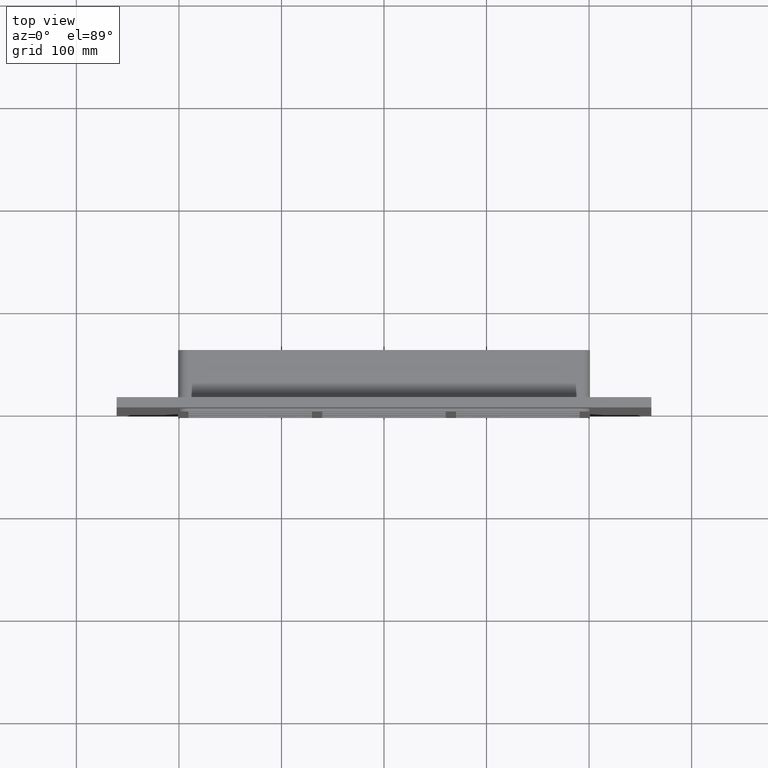
[diagram: clean part render]
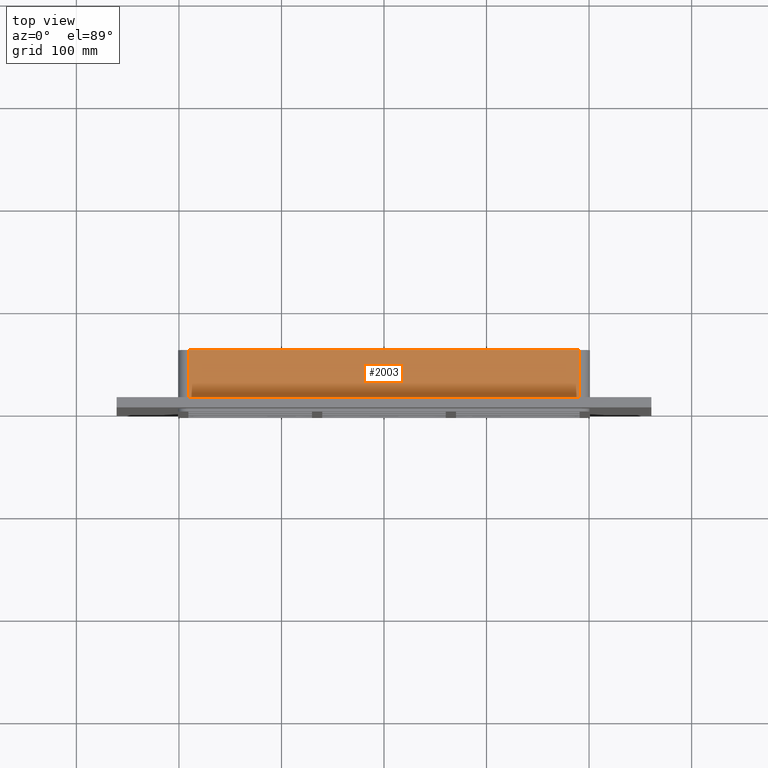
[diagram: same view with one face highlighted and labeled with its STEP entity id]
A machine part, top view. The second image highlights one B-rep face of the part: STEP entity #2003.
In plain terms, the highlighted planar face has unit normal (0, 0, 1).
Its self-contained STEP definition (entity closure, byte-faithful):
#597=CARTESIAN_POINT('',(-190.75000000000003,57.0,181.50000000000003));
#598=VERTEX_POINT('',#597);
#606=CARTESIAN_POINT('',(190.75000000000003,57.0,181.50000000000003));
#607=VERTEX_POINT('',#606);
#608=CARTESIAN_POINT('',(-190.75000000000003,57.0,181.50000000000003));
#609=DIRECTION('',(1.0,0.0,0.0));
#610=VECTOR('',#609,381.50000000000006);
#611=LINE('',#608,#610);
#612=EDGE_CURVE('',#598,#607,#611,.T.);
#1507=CARTESIAN_POINT('',(190.75000000000003,10.0,181.50000000000003));
#1508=VERTEX_POINT('',#1507);
#1516=CARTESIAN_POINT('',(-190.75000000000003,10.0,181.50000000000003));
#1517=VERTEX_POINT('',#1516);
#1518=CARTESIAN_POINT('',(-190.75000000000003,10.0,181.50000000000003));
#1519=DIRECTION('',(1.0,0.0,0.0));
#1520=VECTOR('',#1519,381.50000000000011);
#1521=LINE('',#1518,#1520);
#1522=EDGE_CURVE('',#1517,#1508,#1521,.T.);
#1767=CARTESIAN_POINT('',(190.75000000000003,57.0,181.50000000000003));
#1768=DIRECTION('',(0.0,-1.0,0.0));
#1769=VECTOR('',#1768,47.0);
#1770=LINE('',#1767,#1769);
#1771=EDGE_CURVE('',#607,#1508,#1770,.T.);
#1981=CARTESIAN_POINT('',(-190.75000000000003,10.0,181.50000000000003));
#1982=DIRECTION('',(0.0,1.0,0.0));
#1983=VECTOR('',#1982,47.0);
#1984=LINE('',#1981,#1983);
#1985=EDGE_CURVE('',#1517,#598,#1984,.T.);
#1992=CARTESIAN_POINT('',(-200.75000000000003,0.0,181.50000000000003));
#1993=DIRECTION('',(0.0,0.0,1.0));
#1994=DIRECTION('',(1.0,0.0,0.0));
#1995=AXIS2_PLACEMENT_3D('',#1992,#1993,#1994);
#1996=PLANE('',#1995);
#1997=ORIENTED_EDGE('',*,*,#1522,.T.);
#1998=ORIENTED_EDGE('',*,*,#1771,.F.);
#1999=ORIENTED_EDGE('',*,*,#612,.F.);
#2000=ORIENTED_EDGE('',*,*,#1985,.F.);
#2001=EDGE_LOOP('',(#1997,#1998,#1999,#2000));
#2002=FACE_OUTER_BOUND('',#2001,.T.);
#2003=ADVANCED_FACE('',(#2002),#1996,.T.);